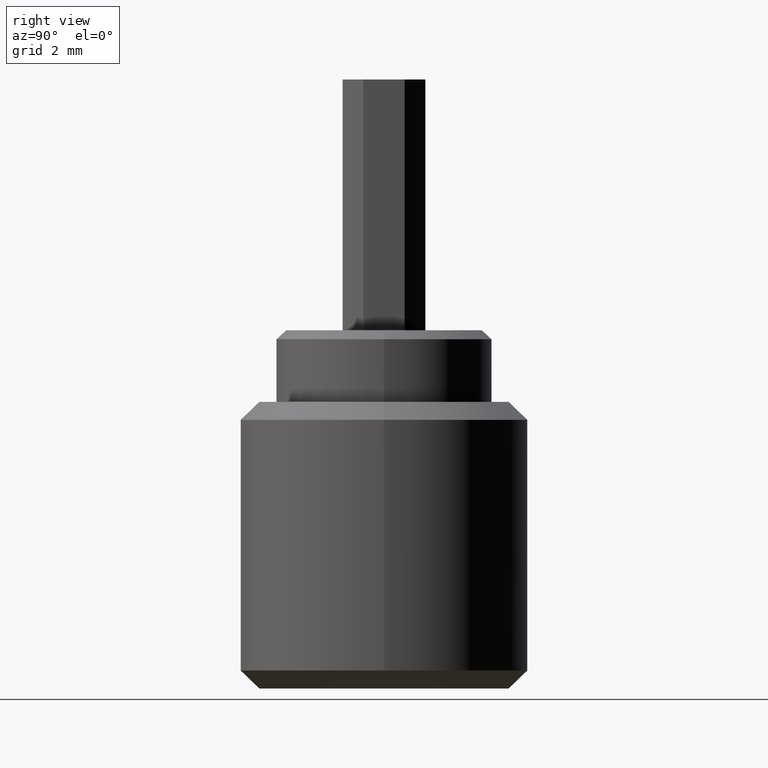
[diagram: clean part render]
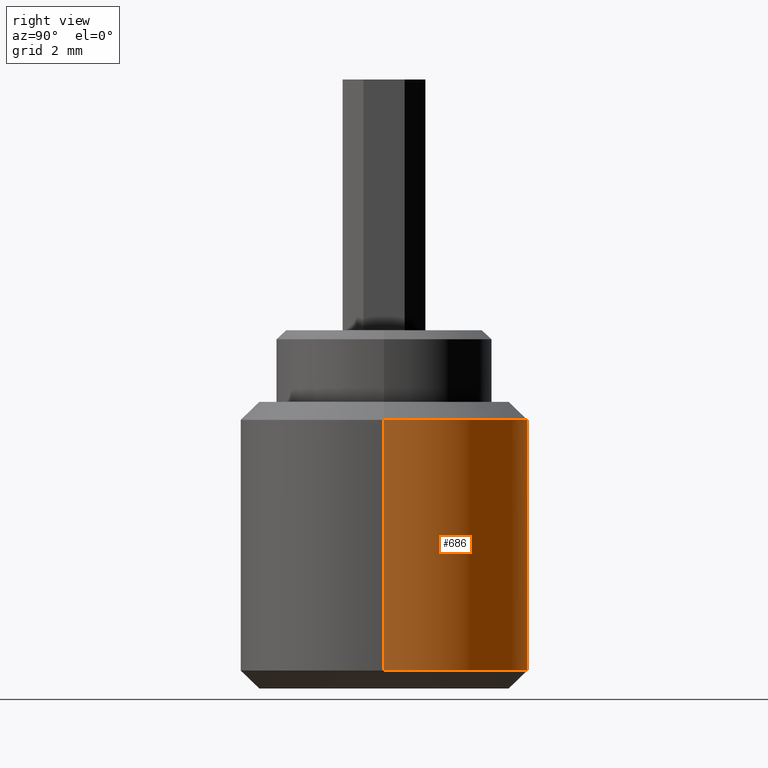
[diagram: same view with one face highlighted and labeled with its STEP entity id]
A machine part, right view. The second image highlights one B-rep face of the part: STEP entity #686.
In plain terms, the highlighted cylindrical surface (partial cylindrical patch) has radius 4 mm, axis along (-0, -0, -1).
Its self-contained STEP definition (entity closure, byte-faithful):
#17 = CARTESIAN_POINT ( 'NONE',  ( -4.000000000000000000, 0.000000000000000000, 0.5000000000000022204 ) ) ;
#32 = VERTEX_POINT ( 'NONE', #954 ) ;
#44 = DIRECTION ( 'NONE',  ( -1.000000000000000000, 0.000000000000000000, 0.000000000000000000 ) ) ;
#46 = EDGE_CURVE ( 'NONE', #32, #958, #726, .T. ) ;
#51 = DIRECTION ( 'NONE',  ( 1.000000000000000000, 0.000000000000000000, 0.000000000000000000 ) ) ;
#63 = AXIS2_PLACEMENT_3D ( 'NONE', #416, #948, #44 ) ;
#89 = CIRCLE ( 'NONE', #639, 4.000000000000000000 ) ;
#102 = VERTEX_POINT ( 'NONE', #271 ) ;
#106 = CIRCLE ( 'NONE', #381, 4.000000000000000000 ) ;
#110 = DIRECTION ( 'NONE',  ( -0.000000000000000000, -0.000000000000000000, 1.000000000000000000 ) ) ;
#118 = EDGE_CURVE ( 'NONE', #958, #600, #106, .T. ) ;
#121 = CARTESIAN_POINT ( 'NONE',  ( 0.000000000000000000, 0.000000000000000000, 0.5000000000000022204 ) ) ;
#135 = EDGE_CURVE ( 'NONE', #102, #32, #89, .T. ) ;
#156 = ORIENTED_EDGE ( 'NONE', *, *, #760, .F. ) ;
#188 = CYLINDRICAL_SURFACE ( 'NONE', #63, 4.000000000000000000 ) ;
#191 = CARTESIAN_POINT ( 'NONE',  ( 4.000000000000000000, 4.898587196589412829E-16, 10.00000000000000000 ) ) ;
#200 = CARTESIAN_POINT ( 'NONE',  ( -4.000000000000000000, 0.000000000000000000, 10.00000000000000000 ) ) ;
#251 = VECTOR ( 'NONE', #957, 1000.000000000000000 ) ;
#266 = CARTESIAN_POINT ( 'NONE',  ( 0.000000000000000000, 0.000000000000000000, 7.500000000000001776 ) ) ;
#267 = ORIENTED_EDGE ( 'NONE', *, *, #135, .T. ) ;
#271 = CARTESIAN_POINT ( 'NONE',  ( -4.000000000000000000, 0.000000000000000000, 7.500000000000001776 ) ) ;
#345 = DIRECTION ( 'NONE',  ( -0.000000000000000000, -0.000000000000000000, -1.000000000000000000 ) ) ;
#347 = FACE_OUTER_BOUND ( 'NONE', #556, .T. ) ;
#381 = AXIS2_PLACEMENT_3D ( 'NONE', #121, #110, #51 ) ;
#416 = CARTESIAN_POINT ( 'NONE',  ( 0.000000000000000000, 0.000000000000000000, 10.00000000000000000 ) ) ;
#484 = DIRECTION ( 'NONE',  ( -0.000000000000000000, -0.000000000000000000, -1.000000000000000000 ) ) ;
#556 = EDGE_LOOP ( 'NONE', ( #267, #938, #716, #156 ) ) ;
#600 = VERTEX_POINT ( 'NONE', #17 ) ;
#639 = AXIS2_PLACEMENT_3D ( 'NONE', #266, #345, #889 ) ;
#656 = VECTOR ( 'NONE', #484, 1000.000000000000000 ) ;
#686 = ADVANCED_FACE ( 'NONE', ( #347 ), #188, .T. ) ;
#716 = ORIENTED_EDGE ( 'NONE', *, *, #118, .T. ) ;
#726 = LINE ( 'NONE', #191, #251 ) ;
#727 = LINE ( 'NONE', #200, #656 ) ;
#760 = EDGE_CURVE ( 'NONE', #102, #600, #727, .T. ) ;
#889 = DIRECTION ( 'NONE',  ( 1.000000000000000000, 0.000000000000000000, 0.000000000000000000 ) ) ;
#906 = CARTESIAN_POINT ( 'NONE',  ( 4.000000000000000000, 4.898587196589412829E-16, 0.5000000000000022204 ) ) ;
#938 = ORIENTED_EDGE ( 'NONE', *, *, #46, .T. ) ;
#948 = DIRECTION ( 'NONE',  ( -0.000000000000000000, -0.000000000000000000, -1.000000000000000000 ) ) ;
#954 = CARTESIAN_POINT ( 'NONE',  ( 4.000000000000000000, 4.898587196589412829E-16, 7.500000000000001776 ) ) ;
#957 = DIRECTION ( 'NONE',  ( -0.000000000000000000, -0.000000000000000000, -1.000000000000000000 ) ) ;
#958 = VERTEX_POINT ( 'NONE', #906 ) ;